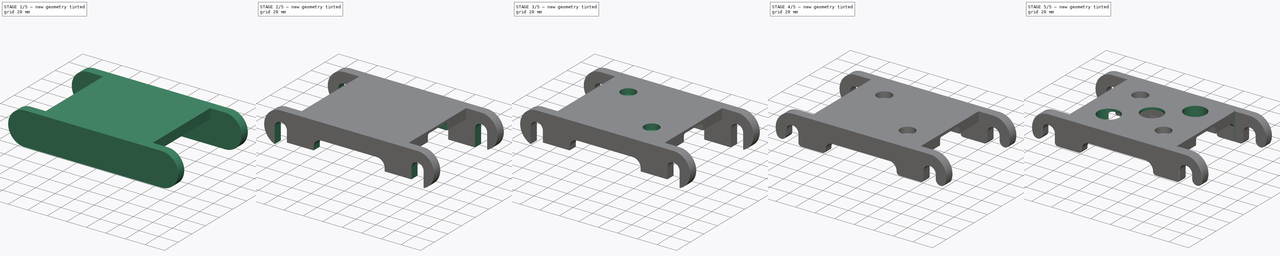
[diagram: build sequence overview — one tinted view per stage of 5, left to right]
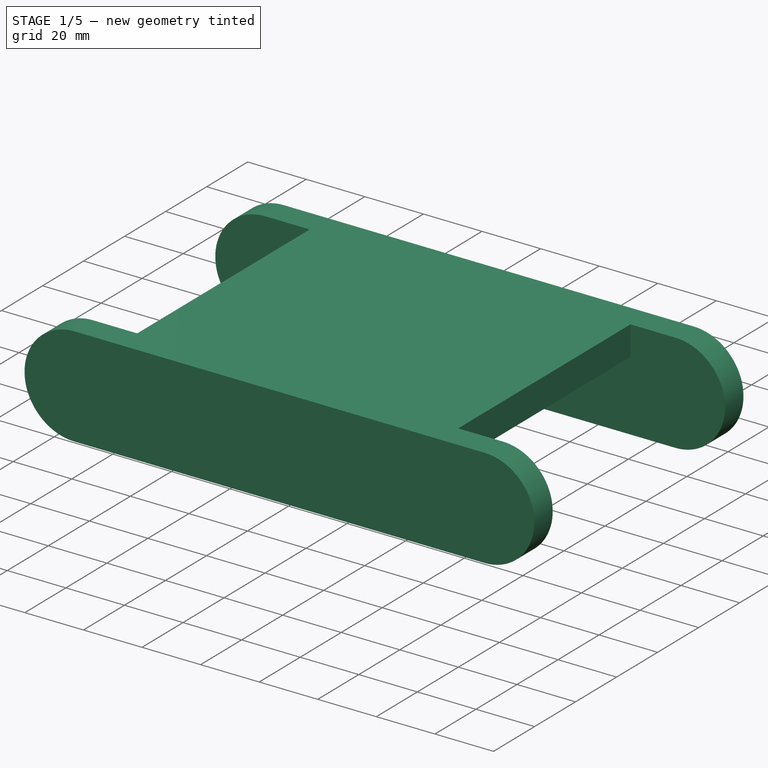
[diagram: stage 1 of 5 — iso view after this stage's code; geometry added in this stage tinted green]
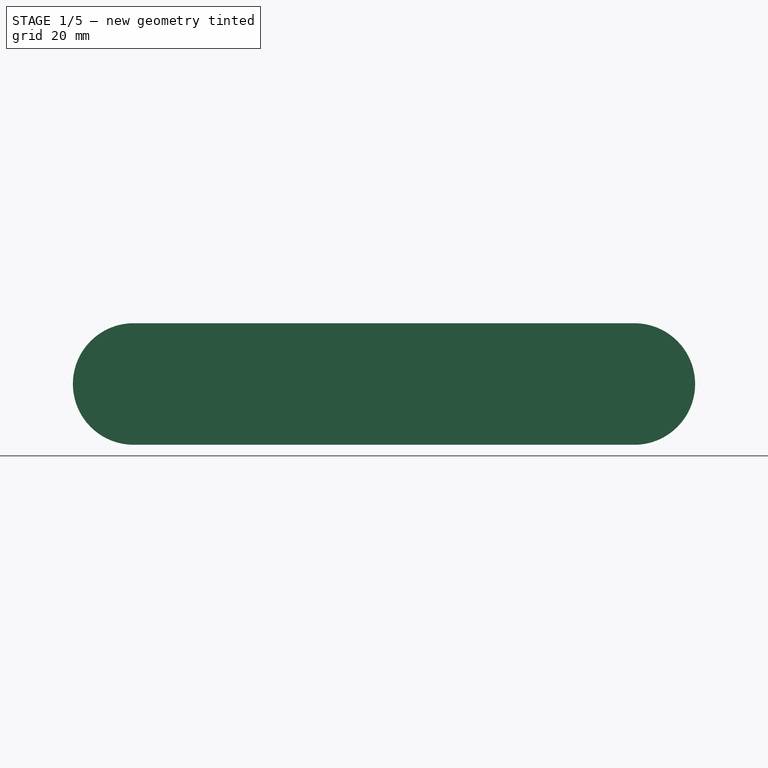
[diagram: stage 1 of 5 — front view after this stage's code; geometry added in this stage tinted green]
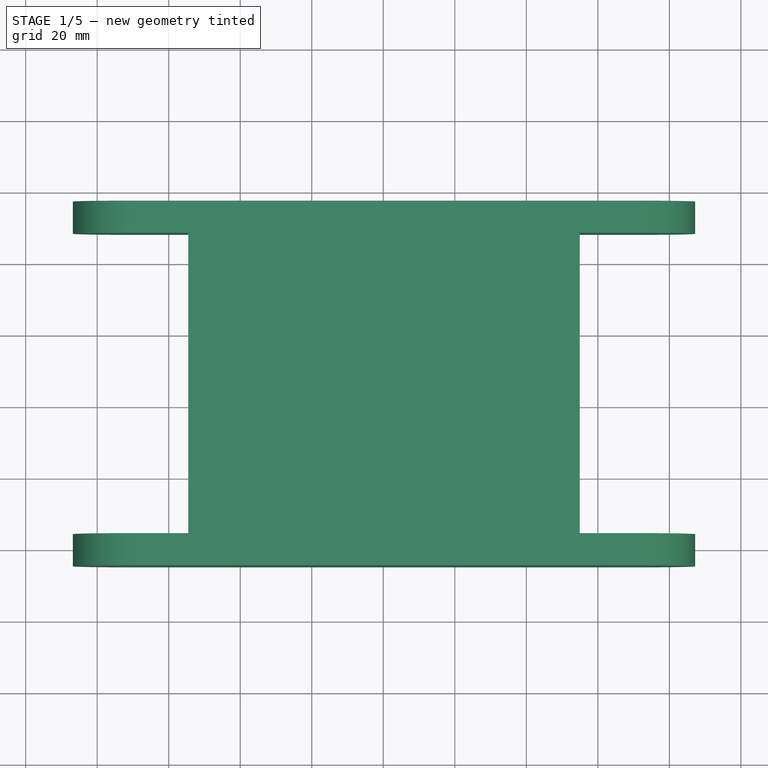
[diagram: stage 1 of 5 — top view after this stage's code; geometry added in this stage tinted green]
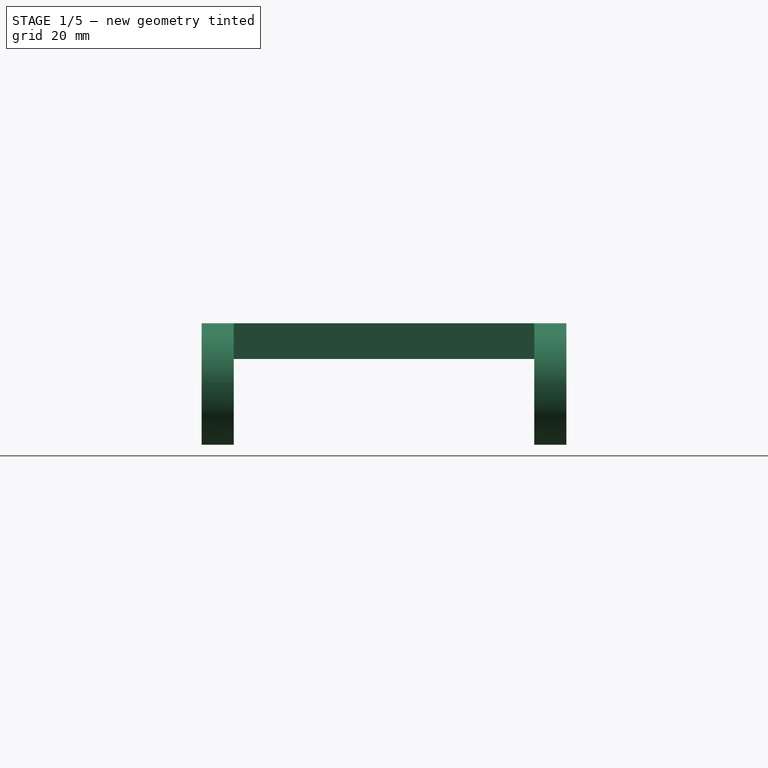
[diagram: stage 1 of 5 — right view after this stage's code; geometry added in this stage tinted green]
FCSTD DOCUMENT  (FreeCAD 0.20R29177 (Git))
Label: AT_007a_beltcenter
License: All rights reserved
LicenseURL: http://en.wikipedia.org/wiki/All_rights_reserved
objects: Sketcher::SketchObject×8, PartDesign::Pocket×5, PartDesign::Pad×4, PartDesign::Fillet×3, PartDesign::SubShapeBinder×1, PartDesign::Plane×1, PartDesign::Mirrored×1, PartDesign::Hole×1, PartDesign::Chamfer×1, PartDesign::Body×1
note: 40 computed .brp shape members not serialized (recipe doc carries the construction recipe); baked Part::Feature solids carry a one-line shape summary decoded from their .brp

FEATURE [PartDesign::SubShapeBinder] Binder
  BindCopyOnChange = 0
  BindMode = 2
  ClaimChildren = false
  Context = -> Body [Binder.]
  Fuse = false
  MakeFace = true
  OffsetFill = false
  OffsetIntersection = false
  OffsetJoinType = 0
  OffsetOpenResult = false
  PartialLoad = false
  Relative = true
  _Version = 2
FEATURE [Sketcher::SketchObject] Sketch
  ExternalGeometry = -> [Binder]
  FullyConstrained = true
  MapMode = 5
  Placement = pos=(-8.276e-13,9.51e-14,286.375) rot=(0,0,1;0rad)
  Support = -> [Binder]
  sketch-geometry (4):
    g0: LineSegment StartX=45.45 StartY=297.271 StartZ=0 EndX=154.95 EndY=297.271 EndZ=0
    g1: LineSegment StartX=154.95 StartY=297.271 StartZ=0 EndX=154.95 EndY=195.271 EndZ=0
    g2: LineSegment StartX=154.95 StartY=195.271 StartZ=0 EndX=45.45 EndY=195.271 EndZ=0
    g3: LineSegment StartX=45.45 StartY=195.271 StartZ=0 EndX=45.45 EndY=297.271 EndZ=0
  constraints (12):
    c: Coincident(g0,g1)
    c: Coincident(g1,g2)
    c: Coincident(g2,g3)
    c: Coincident(g3,g0)
    c: Horizontal(g0)
    c: Horizontal(g2)
    c: Vertical(g1)
    c: Vertical(g3)
    c: Vertical(g2,g-6)
    c: Vertical(g3,g-5)
    c: DistanceY(g-3,g0) = 3
    c: DistanceY(g1,g-4) = 3
FEATURE [PartDesign::Pad] Pad
  Direction = (-2.9e-15,3e-16,1)
  Length = 10
  Length2 = 10
  Profile = -> Sketch
  ReferenceAxis = -> Sketch [N_Axis]
  Reversed = true
  Type = 0
FEATURE [Sketcher::SketchObject] Sketch001
  ExternalGeometry = -> [Binder,Pad]
  FullyConstrained = true
  MapMode = 5
  Placement = pos=(-3.8097e-12,204.271,4.45e-14) rot=(1,0,0;1.5708rad)
  Support = -> [Binder]
  sketch-geometry (4):
    g0: ArcOfCircle CenterX=30.2 CenterY=269.375 CenterZ=0 NormalX=0 NormalY=0 NormalZ=1 AngleXU=0 Radius=17 StartAngle=1.5708 EndAngle=4.71239
    g1: ArcOfCircle CenterX=170.2 CenterY=269.375 CenterZ=0 NormalX=0 NormalY=0 NormalZ=1 AngleXU=0 Radius=17 StartAngle=4.71239 EndAngle=7.85398
    g2: LineSegment StartX=30.2 StartY=252.375 StartZ=0 EndX=170.2 EndY=252.375 EndZ=0
    g3: LineSegment StartX=170.2 StartY=286.375 StartZ=0 EndX=30.2 EndY=286.375 EndZ=0
  constraints (8):
    c: Tangent(g0,g2) = -1.5708
    c: Tangent(g2,g1) = -1.5708
    c: Tangent(g1,g3) = -1.5708
    c: Tangent(g3,g0) = -1.5708
    c: Equal(g0,g1)
    c: Coincident(g0,g-6)
    c: Coincident(g1,g-4)
    c: Horizontal(g1,g-7)
FEATURE [PartDesign::Pad] Pad001
  BaseFeature = -> Pad
  Direction = (1.87e-14,-1,-2e-16)
  Length = 9
  Length2 = 10
  Profile = -> Sketch001
  ReferenceAxis = -> Sketch001 [N_Axis]
  Type = 0
FEATURE [PartDesign::Plane] DatumPlane
  AttachmentOffset = pos=(0,0,0) rot=(1,0,0;1.5708rad)
  Length = 263.485
  MapMode = 45
  Placement = pos=(100.2,246.271,281.375) rot=(1,0,0;1.5708rad)
  ResizeMode = 0
  Support = -> [Pad001]
  Width = 362.772
FEATURE [PartDesign::Mirrored] Mirrored
  BaseFeature = -> Pad001
  MirrorPlane = -> DatumPlane
  Originals = -> [Pad001]
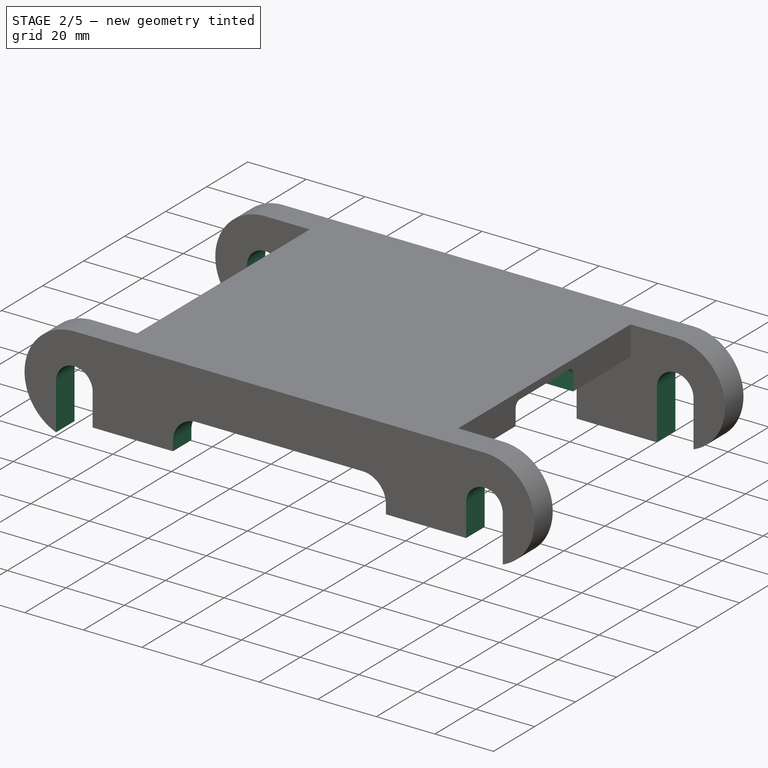
[diagram: stage 2 of 5 — iso view after this stage's code; geometry added in this stage tinted green]
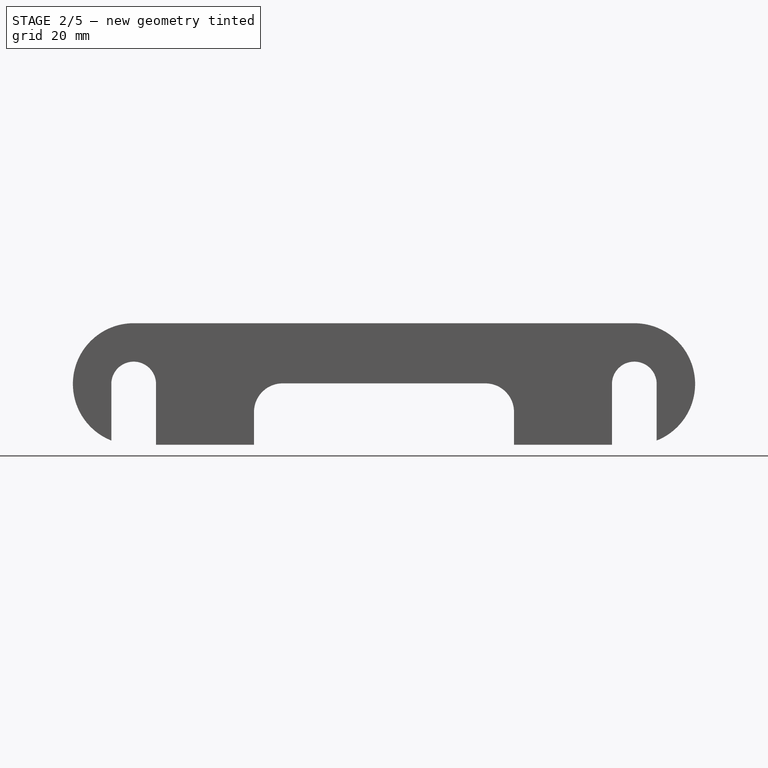
[diagram: stage 2 of 5 — front view after this stage's code; geometry added in this stage tinted green]
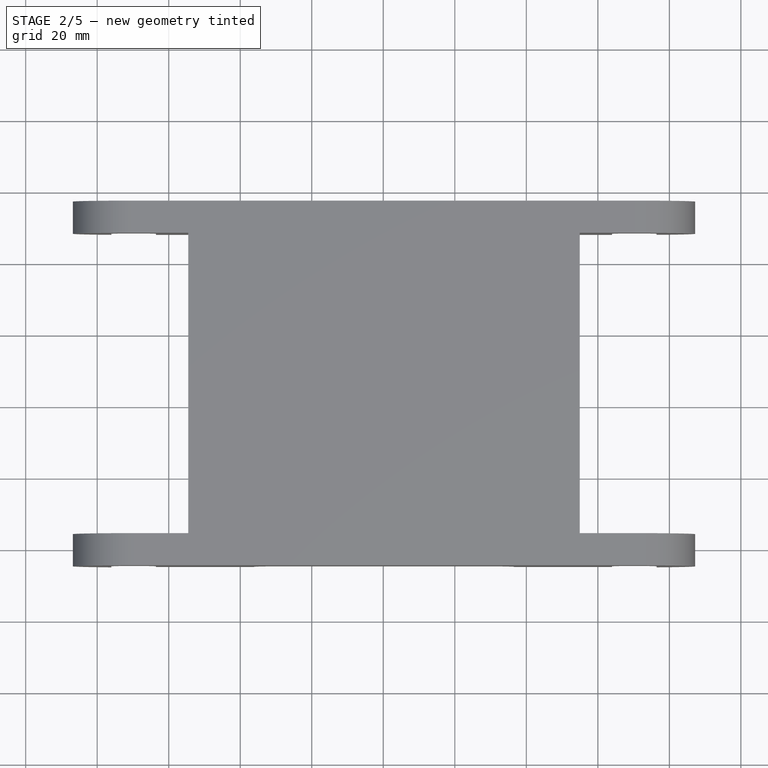
[diagram: stage 2 of 5 — top view after this stage's code; geometry added in this stage tinted green]
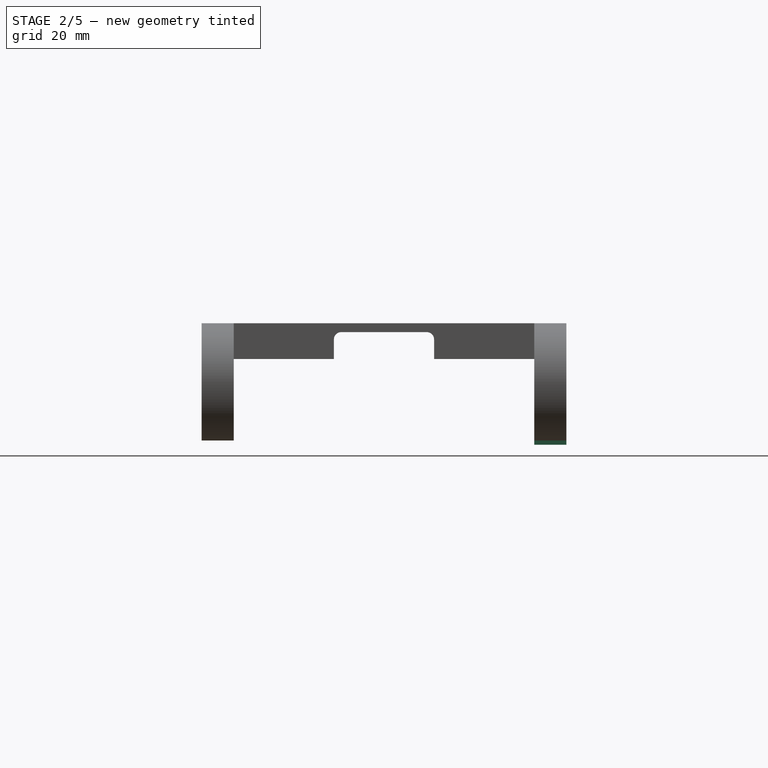
[diagram: stage 2 of 5 — right view after this stage's code; geometry added in this stage tinted green]
FEATURE [Sketcher::SketchObject] Sketch002
  ExternalGeometry = -> [Mirrored,Binder]
  FullyConstrained = false
  MapMode = 5
  Placement = pos=(-3.6293e-12,195.271,7.74e-14) rot=(1,0,0;1.5708rad)
  Support = -> [Mirrored]
  sketch-geometry (19):
    g0: LineSegment StartX=100.2 StartY=298.804 StartZ=0 EndX=100.2 EndY=223.761 EndZ=0
    g1: ArcOfCircle CenterX=71.8429 CenterY=261.547 CenterZ=0 NormalX=0 NormalY=0 NormalZ=1 AngleXU=0 Radius=8 StartAngle=1.5708 EndAngle=3.14159
    g2: LineSegment StartX=71.8429 StartY=269.547 StartZ=0 EndX=128.557 EndY=269.547 EndZ=0
    g3: ArcOfCircle CenterX=128.557 CenterY=261.547 CenterZ=0 NormalX=0 NormalY=0 NormalZ=1 AngleXU=0 Radius=8 StartAngle=3.1e-15 EndAngle=1.5708
    g4: LineSegment StartX=136.557 StartY=261.547 StartZ=0 EndX=136.557 EndY=244.273 EndZ=0
    g5: ArcOfCircle CenterX=128.557 CenterY=244.273 CenterZ=0 NormalX=0 NormalY=0 NormalZ=1 AngleXU=0 Radius=8 StartAngle=4.71239 EndAngle=6.28319
    g6: LineSegment StartX=128.557 StartY=236.273 StartZ=0 EndX=71.8429 EndY=236.273 EndZ=0
    g7: ArcOfCircle CenterX=71.8429 CenterY=244.273 CenterZ=0 NormalX=0 NormalY=0 NormalZ=1 AngleXU=0 Radius=8 StartAngle=3.14159 EndAngle=4.71239
    g8: LineSegment StartX=63.8429 StartY=244.273 StartZ=0 EndX=63.8429 EndY=261.547 EndZ=0
    g9: GeomPoint X=63.8429 Y=269.547 Z=0
    g10: GeomPoint X=136.557 Y=236.273 Z=0
    g11: ArcOfCircle CenterX=30.2 CenterY=269.375 CenterZ=0 NormalX=0 NormalY=0 NormalZ=1 AngleXU=0 Radius=6.25 StartAngle=-9e-16 EndAngle=3.14159
    g12: ArcOfCircle CenterX=30.2 CenterY=234.615 CenterZ=0 NormalX=0 NormalY=0 NormalZ=1 AngleXU=0 Radius=6.25 StartAngle=3.14159 EndAngle=6.28319
    g13: LineSegment StartX=23.95 StartY=269.375 StartZ=0 EndX=23.95 EndY=234.615 EndZ=0
    g14: LineSegment StartX=36.45 StartY=234.615 StartZ=0 EndX=36.45 EndY=269.375 EndZ=0
    g15: ArcOfCircle CenterX=170.2 CenterY=269.375 CenterZ=0 NormalX=0 NormalY=0 NormalZ=1 AngleXU=0 Radius=6.25 StartAngle=7e-16 EndAngle=3.14159
    g16: ArcOfCircle CenterX=170.2 CenterY=236.099 CenterZ=0 NormalX=0 NormalY=0 NormalZ=1 AngleXU=0 Radius=6.25 StartAngle=3.14159 EndAngle=6.28319
    g17: LineSegment StartX=163.95 StartY=269.375 StartZ=0 EndX=163.95 EndY=236.099 EndZ=0
    g18: LineSegment StartX=176.45 StartY=236.099 StartZ=0 EndX=176.45 EndY=269.375 EndZ=0
  constraints (37):
    c: Symmetric(g-3,g-4,g0)
    c: Tangent(g1,g2) = 1.5708
    c: Tangent(g2,g3) = 1.5708
    c: Tangent(g3,g4) = 1.5708
    c: Tangent(g4,g5) = 1.5708
    c: Tangent(g5,g6) = 1.5708
    c: Tangent(g6,g7) = 1.5708
    c: Tangent(g7,g8) = 1.5708
    c: Tangent(g8,g1) = 1.5708
    c: Horizontal(g2)
    c: Vertical(g4)
    c: Vertical(g8)
    c: Equal(g1,g3)
    c: Equal(g3,g5)
    c: Equal(g5,g7)
    c: PointOnObject(g9,g2)
    c: PointOnObject(g9,g8)
    c: PointOnObject(g10,g4)
    c: PointOnObject(g10,g6)
    c: Diameter(g3) = 16
    c: Symmetric(g6,g5,g0)
    c: Tangent(g11,g13) = -1.5708
    c: Tangent(g13,g12) = -1.5708
    c: Tangent(g12,g14) = -1.5708
    c: Tangent(g14,g11) = -1.5708
    c: Equal(g11,g12)
    c: Coincident(g11,g-6)
    c: Vertical(g13)
    c: Tangent(g15,g17) = -1.5708
    c: Tangent(g17,g16) = -1.5708
    c: Tangent(g16,g18) = -1.5708
    c: Tangent(g18,g15) = -1.5708
    c: Equal(g15,g16)
    c: Coincident(g15,g-4)
    c: Vertical(g17)
    c: Equal(g11,g15)
    c: Equal(g11,g-6)
FEATURE [PartDesign::Pocket] Pocket
  BaseFeature = -> Mirrored
  Direction = (-1.86e-14,1,4e-16)
  Length = 5
  Length2 = 5
  Profile = -> Sketch002
  ReferenceAxis = -> Sketch002 [N_Axis]
  Type = 1
FEATURE [PartDesign::Pocket] Pocket001
  BaseFeature = -> Pocket
  Direction = (-3.7e-15,-2e-16,1)
  Length = 6
  Length2 = 5
  Profile = -> Pocket [Face35,Face41]
  Type = 0
FEATURE [Sketcher::SketchObject] Sketch003
  ExternalGeometry = -> [Binder]
  FullyConstrained = false
  MapMode = 5
  Placement = pos=(154.95,0,4.478e-13) rot=(0.57735,0.57735,0.57735;2.0944rad)
  Support = -> [Pocket001]
  sketch-geometry (10):
    g0: ArcOfCircle CenterX=234.271 CenterY=281.875 CenterZ=0 NormalX=0 NormalY=0 NormalZ=1 AngleXU=0 Radius=2 StartAngle=1.5708 EndAngle=3.14159
    g1: LineSegment StartX=234.271 StartY=283.875 StartZ=0 EndX=258.271 EndY=283.875 EndZ=0
    g2: ArcOfCircle CenterX=258.271 CenterY=281.875 CenterZ=0 NormalX=0 NormalY=0 NormalZ=1 AngleXU=0 Radius=2 StartAngle=8e-16 EndAngle=1.5708
    g3: LineSegment StartX=260.271 StartY=281.875 StartZ=0 EndX=260.271 EndY=266.806 EndZ=0
    g4: ArcOfCircle CenterX=258.271 CenterY=266.806 CenterZ=0 NormalX=0 NormalY=0 NormalZ=1 AngleXU=0 Radius=2 StartAngle=4.71239 EndAngle=6.28319
    g5: LineSegment StartX=258.271 StartY=264.806 StartZ=0 EndX=234.271 EndY=264.806 EndZ=0
    g6: ArcOfCircle CenterX=234.271 CenterY=266.806 CenterZ=0 NormalX=0 NormalY=0 NormalZ=1 AngleXU=0 Radius=2 StartAngle=3.14159 EndAngle=4.71239
    g7: LineSegment StartX=232.271 StartY=266.806 StartZ=0 EndX=232.271 EndY=281.875 EndZ=0
    g8: GeomPoint X=232.271 Y=283.875 Z=0
    g9: GeomPoint X=260.271 Y=264.806 Z=0
  constraints (21):
    c: Tangent(g0,g1) = 1.5708
    c: Tangent(g1,g2) = 1.5708
    c: Tangent(g2,g3) = 1.5708
    c: Tangent(g3,g4) = 1.5708
    c: Tangent(g4,g5) = 1.5708
    c: Tangent(g5,g6) = 1.5708
    c: Tangent(g6,g7) = 1.5708
    c: Tangent(g7,g0) = 1.5708
    c: Horizontal(g1)
    c: Horizontal(g5)
    c: Vertical(g3)
    c: Vertical(g7)
    c: Equal(g2,g4)
    c: Equal(g4,g6)
    c: PointOnObject(g8,g1)
    c: PointOnObject(g8,g7)
    c: PointOnObject(g9,g3)
    c: PointOnObject(g9,g5)
    c: Coincident(g0,g-3)
    c: Coincident(g2,g-5)
    c: DistanceY(g-5,g1) = 1
FEATURE [PartDesign::Pocket] Pocket002
  BaseFeature = -> Pocket001
  Direction = (-1,-1e-16,-2.8e-15)
  Length = 5
  Length2 = 5
  Profile = -> Sketch003
  ReferenceAxis = -> Sketch003 [N_Axis]
  Type = 1
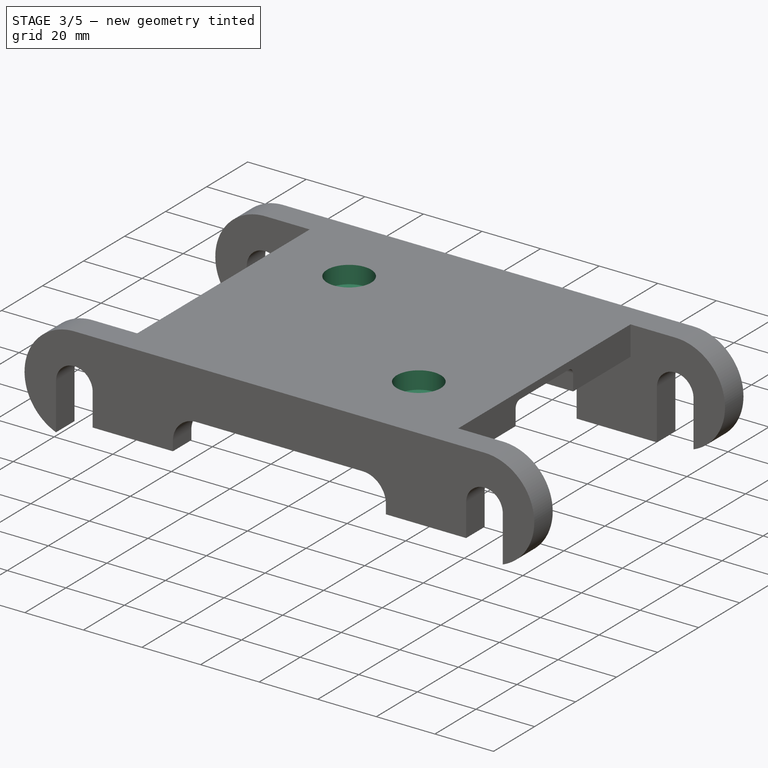
[diagram: stage 3 of 5 — iso view after this stage's code; geometry added in this stage tinted green]
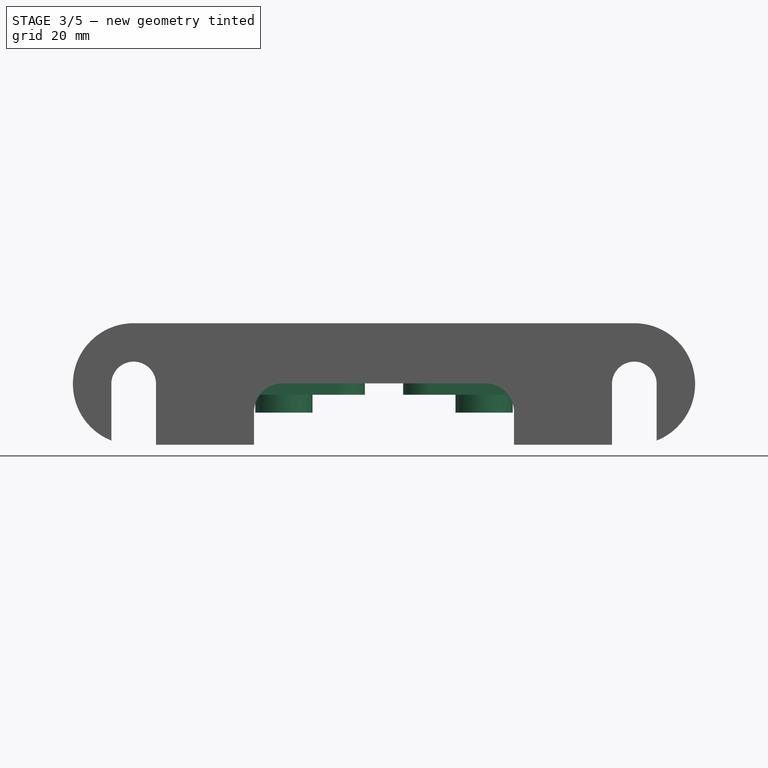
[diagram: stage 3 of 5 — front view after this stage's code; geometry added in this stage tinted green]
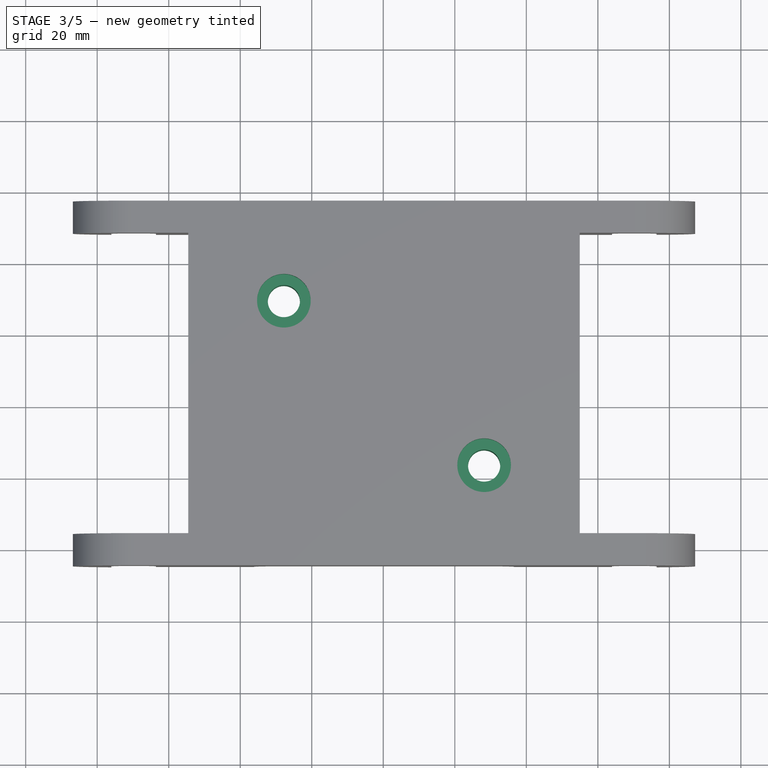
[diagram: stage 3 of 5 — top view after this stage's code; geometry added in this stage tinted green]
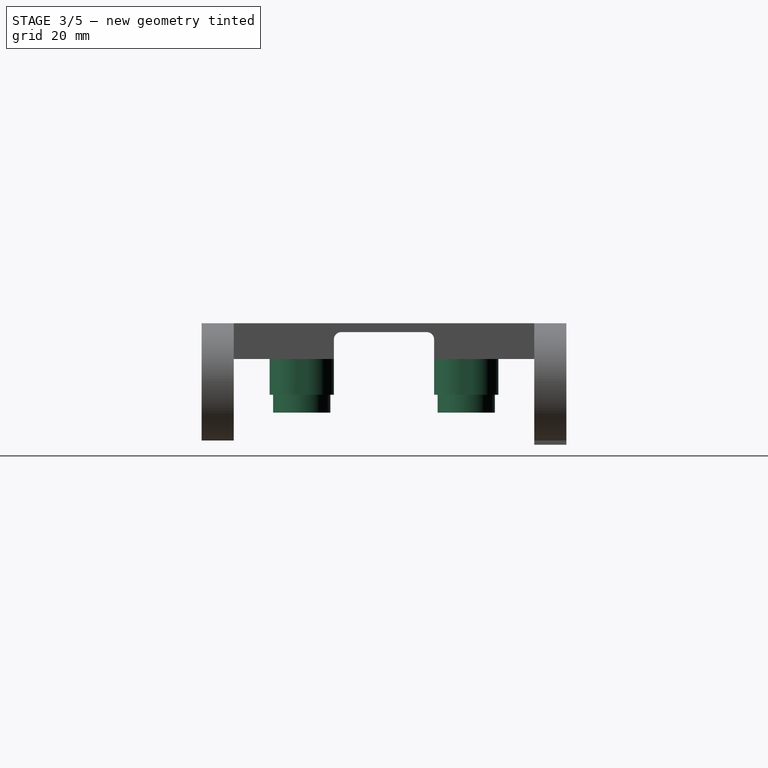
[diagram: stage 3 of 5 — right view after this stage's code; geometry added in this stage tinted green]
FEATURE [Sketcher::SketchObject] Sketch004
  ExternalGeometry = -> [Binder]
  FullyConstrained = true
  MapMode = 5
  Placement = pos=(-8.176e-13,7.98e-14,286.375) rot=(0,0,1;0rad)
  Support = -> [Pocket002]
  sketch-geometry (2):
    g0: Circle CenterX=72.2 CenterY=269.271 CenterZ=0 NormalX=0 NormalY=0 NormalZ=1 AngleXU=0 Radius=8
    g1: Circle CenterX=128.2 CenterY=223.271 CenterZ=0 NormalX=0 NormalY=0 NormalZ=1 AngleXU=0 Radius=8
  constraints (4):
    c: Coincident(g0,g-4)
    c: Coincident(g1,g-3)
    c: Equal(g0,g1)
    c: Diameter(g0) = 16
FEATURE [PartDesign::Pad] Pad002
  BaseFeature = -> Pocket002
  Direction = (-2.9e-15,3e-16,1)
  Length = 25
  Length2 = 10
  Profile = -> Sketch004
  ReferenceAxis = -> Sketch004 [N_Axis]
  Reversed = true
  Type = 0
FEATURE [Sketcher::SketchObject] Sketch005
  ExternalGeometry = -> [Pad002]
  FullyConstrained = false
  MapMode = 5
  Placement = pos=(-1.0741e-12,-2.32e-13,286.375) rot=(0,0,1;0rad)
  Support = -> [Pad002]
  sketch-geometry (2):
    g0: Circle CenterX=72.2 CenterY=269.271 CenterZ=0 NormalX=0 NormalY=0 NormalZ=1 AngleXU=0 Radius=4.05186
    g1: Circle CenterX=128.2 CenterY=223.271 CenterZ=0 NormalX=0 NormalY=0 NormalZ=1 AngleXU=0 Radius=4.29389
  constraints (2):
    c: Coincident(g0,g-3)
    c: Coincident(g1,g-4)
FEATURE [PartDesign::Hole] Hole
  BaseFeature = -> Pad002
  CustomThreadClearance = 0
  Depth = 25
  DepthType = 0
  Diameter = 9
  DrillForDepth = false
  DrillPoint = 1
  DrillPointAngle = 118
  HoleCutCountersinkAngle = 90
  HoleCutCustomValues = false
  HoleCutDepth = 6
  HoleCutDiameter = 15
  HoleCutType = 6
  ModelThread = false
  Profile = -> Sketch005
  Tapered = false
  TaperedAngle = 90
  ThreadClass = 0
  ThreadDepth = 25
  ThreadDepthType = 0
  ThreadDirection = 0
  ThreadFit = 0
  ThreadSize = 16
  ThreadType = 1
  Threaded = false
  UseCustomThreadClearance = false
FEATURE [Sketcher::SketchObject] Sketch006
  ExternalGeometry = -> [Hole]
  FullyConstrained = false
  MapMode = 5
  Placement = pos=(-7.891e-13,7.7e-14,276.375) rot=(1,0,0;3.14159rad)
  Support = -> [Hole]
  sketch-geometry (22):
    g0: ArcOfCircle CenterX=113.011 CenterY=-221.732 CenterZ=0 NormalX=0 NormalY=0 NormalZ=1 AngleXU=0 Radius=7.46051 StartAngle=1.5708 EndAngle=3.14159
    g1: LineSegment StartX=113.011 StartY=-214.271 StartZ=0 EndX=143.389 EndY=-214.271 EndZ=0
    g2: ArcOfCircle CenterX=143.389 CenterY=-221.732 CenterZ=0 NormalX=0 NormalY=0 NormalZ=1 AngleXU=0 Radius=7.46051 StartAngle=3e-16 EndAngle=1.5708
    g3: LineSegment StartX=150.849 StartY=-221.732 StartZ=0 EndX=150.849 EndY=-224.811 EndZ=0
    g4: ArcOfCircle CenterX=143.389 CenterY=-224.811 CenterZ=0 NormalX=0 NormalY=0 NormalZ=1 AngleXU=0 Radius=7.46051 StartAngle=4.71239 EndAngle=6.28319
    g5: LineSegment StartX=143.389 StartY=-232.271 StartZ=0 EndX=113.011 EndY=-232.271 EndZ=0
    g6: ArcOfCircle CenterX=113.011 CenterY=-224.811 CenterZ=0 NormalX=0 NormalY=0 NormalZ=1 AngleXU=0 Radius=7.46051 StartAngle=3.14159 EndAngle=4.71239
    g7: LineSegment StartX=105.551 StartY=-224.811 StartZ=0 EndX=105.551 EndY=-221.732 EndZ=0
    g8: GeomPoint X=105.551 Y=-214.271 Z=0
    g9: GeomPoint X=150.849 Y=-232.271 Z=0
    g10: Circle CenterX=128.2 CenterY=-223.271 CenterZ=0 NormalX=0 NormalY=0 NormalZ=1 AngleXU=0 Radius=5.39363
    g11: ArcOfCircle CenterX=57.0111 CenterY=-267.732 CenterZ=0 NormalX=0 NormalY=0 NormalZ=1 AngleXU=0 Radius=7.46051 StartAngle=1.5708 EndAngle=3.14159
    g12: LineSegment StartX=57.0111 StartY=-260.271 StartZ=0 EndX=87.3889 EndY=-260.271 EndZ=0
    g13: ArcOfCircle CenterX=87.3889 CenterY=-267.732 CenterZ=0 NormalX=0 NormalY=0 NormalZ=1 AngleXU=0 Radius=7.46051 StartAngle=-2.7e-15 EndAngle=1.5708
    g14: LineSegment StartX=94.8494 StartY=-267.732 StartZ=0 EndX=94.8494 EndY=-270.811 EndZ=0
    g15: ArcOfCircle CenterX=87.3889 CenterY=-270.811 CenterZ=0 NormalX=0 NormalY=0 NormalZ=1 AngleXU=0 Radius=7.46051 StartAngle=4.71239 EndAngle=6.28319
    g16: LineSegment StartX=87.3889 StartY=-278.271 StartZ=0 EndX=57.0111 EndY=-278.271 EndZ=0
    g17: ArcOfCircle CenterX=57.0111 CenterY=-270.811 CenterZ=0 NormalX=0 NormalY=0 NormalZ=1 AngleXU=0 Radius=7.46051 StartAngle=3.14159 EndAngle=4.71239
    g18: LineSegment StartX=49.5506 StartY=-270.811 StartZ=0 EndX=49.5506 EndY=-267.732 EndZ=0
    g19: GeomPoint X=49.5506 Y=-260.271 Z=0
    g20: GeomPoint X=94.8494 Y=-278.271 Z=0
    g21: Circle CenterX=72.2 CenterY=-269.271 CenterZ=0 NormalX=0 NormalY=0 NormalZ=1 AngleXU=0 Radius=6.81911
  constraints (46):
    c: Tangent(g0,g1) = 1.5708
    c: Tangent(g1,g2) = 1.5708
    c: Tangent(g2,g3) = 1.5708
    c: Tangent(g3,g4) = 1.5708
    c: Tangent(g4,g5) = 1.5708
    c: Tangent(g5,g6) = 1.5708
    c: Tangent(g6,g7) = 1.5708
    c: Tangent(g7,g0) = 1.5708
    c: Horizontal(g1)
    c: Horizontal(g5)
    c: Vertical(g3)
    c: Vertical(g7)
    c: Equal(g0,g2)
    c: Equal(g2,g4)
    c: Equal(g4,g6)
    c: PointOnObject(g8,g1)
    c: PointOnObject(g8,g7)
    c: PointOnObject(g9,g3)
    c: PointOnObject(g9,g5)
    c: Symmetric(g0,g4,g-6)
    c: PointOnObject(g4,g-7)
    c: Coincident(g10,g-6)
    c: Tangent(g11,g12) = 1.5708
    c: Tangent(g12,g13) = 1.5708
    c: Tangent(g13,g14) = 1.5708
    c: Tangent(g14,g15) = 1.5708
    c: Tangent(g15,g16) = 1.5708
    c: Tangent(g16,g17) = 1.5708
    c: Tangent(g17,g18) = 1.5708
    c: Tangent(g18,g11) = 1.5708
    c: Horizontal(g12)
    c: Horizontal(g16)
    c: Vertical(g14)
    c: Vertical(g18)
    c: Equal(g11,g13)
    c: Equal(g13,g15)
    c: Equal(g15,g17)
    c: PointOnObject(g19,g12)
    c: PointOnObject(g19,g18)
    c: PointOnObject(g20,g14)
    c: PointOnObject(g20,g16)
    c: Symmetric(g11,g15,g-5)
    c: Equal(g12,g1)
    c: Equal(g14,g3)
    c: PointOnObject(g12,g-8)
    c: Coincident(g21,g-5)
FEATURE [PartDesign::Pad] Pad003
  BaseFeature = -> Hole
  Direction = (2.9e-15,-3e-16,-1)
  Length = 10
  Length2 = 10
  Profile = -> Sketch006
  ReferenceAxis = -> Sketch006 [N_Axis]
  Type = 0
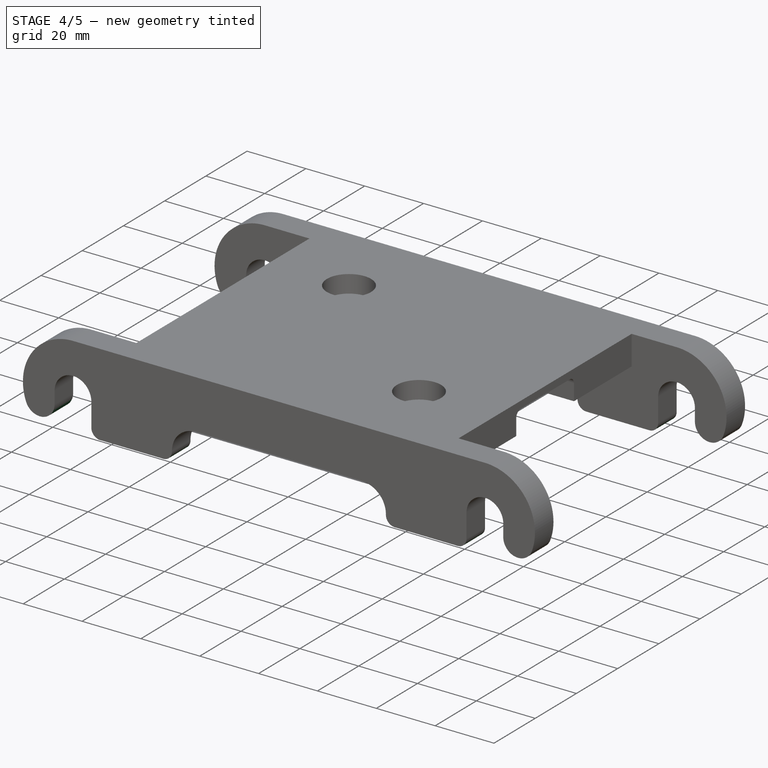
[diagram: stage 4 of 5 — iso view after this stage's code; geometry added in this stage tinted green]
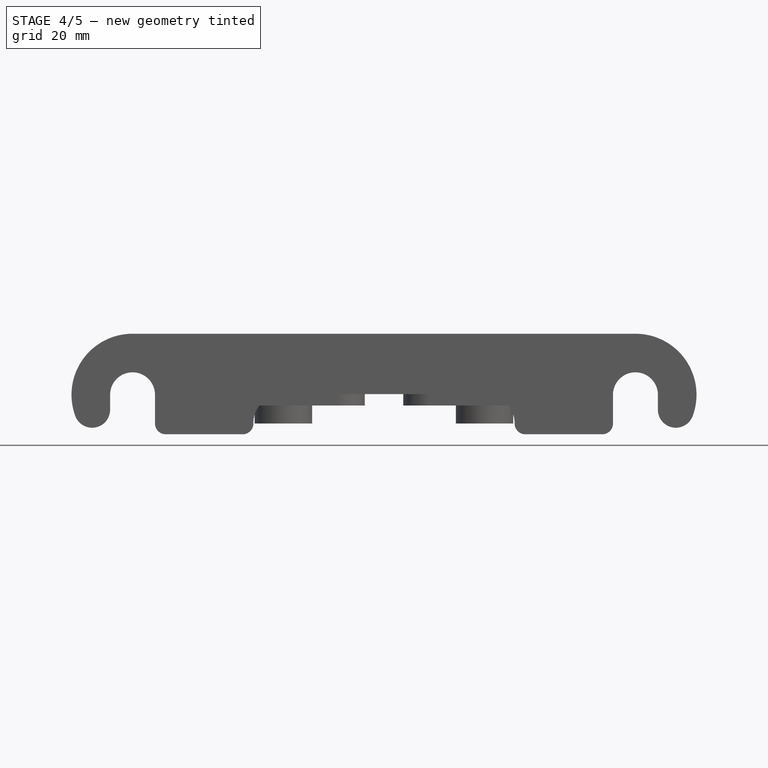
[diagram: stage 4 of 5 — front view after this stage's code; geometry added in this stage tinted green]
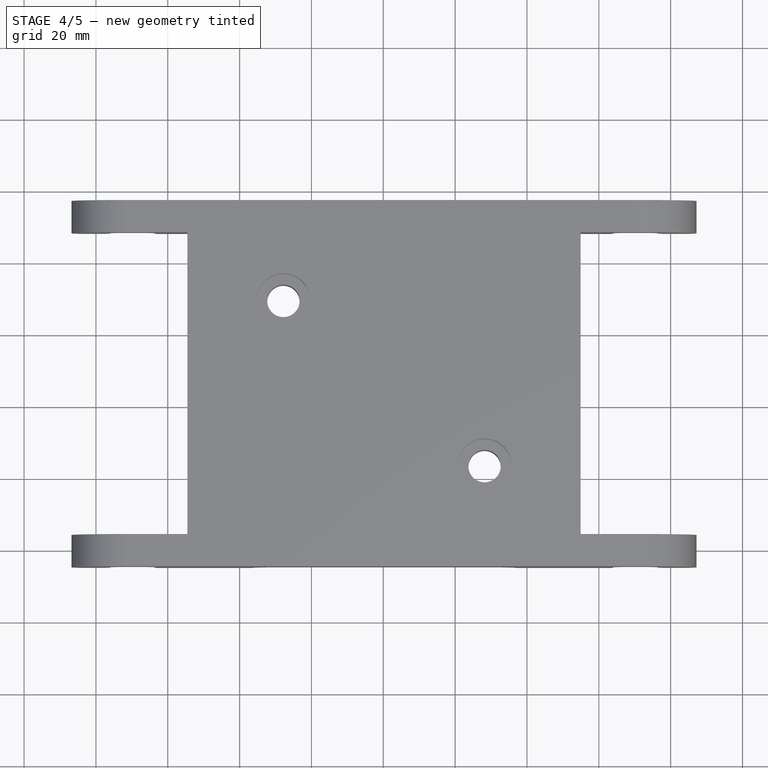
[diagram: stage 4 of 5 — top view after this stage's code; geometry added in this stage tinted green]
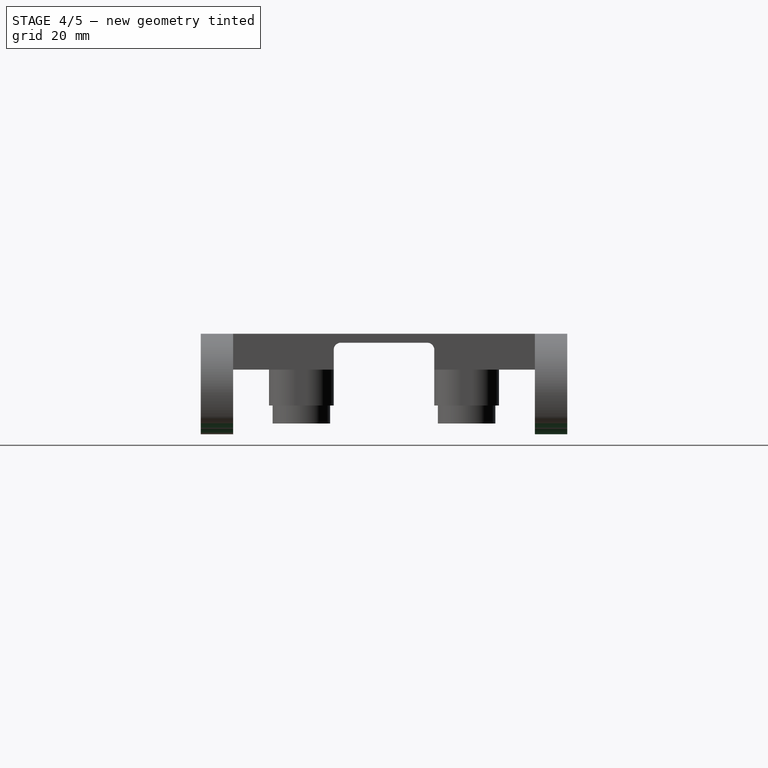
[diagram: stage 4 of 5 — right view after this stage's code; geometry added in this stage tinted green]
FEATURE [PartDesign::Pocket] Pocket003
  BaseFeature = -> Pad003
  Direction = (-3.7e-15,7e-16,1)
  Length = 6
  Length2 = 5
  Profile = -> Pad003 [Face8,Face14]
  Type = 0
FEATURE [PartDesign::Fillet] Fillet
  Base = -> Pocket003 [Edge52,Edge182,Edge155,Edge26]
  BaseFeature = -> Pocket003
  Radius = 5
  SupportTransform = false
  UseAllEdges = false
FEATURE [PartDesign::Fillet] Fillet001
  Base = -> Fillet [Edge60,Edge204,Edge58,Edge38,Edge35,Edge180,Edge181,Edge202]
  BaseFeature = -> Fillet
  Radius = 3
  SupportTransform = false
  UseAllEdges = false
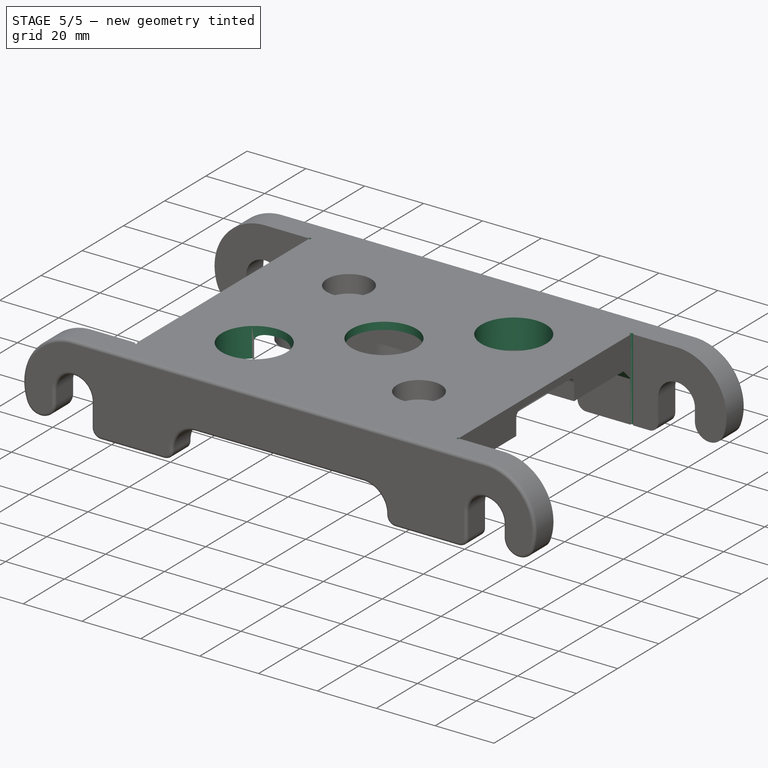
[diagram: stage 5 of 5 — iso view after this stage's code; geometry added in this stage tinted green]
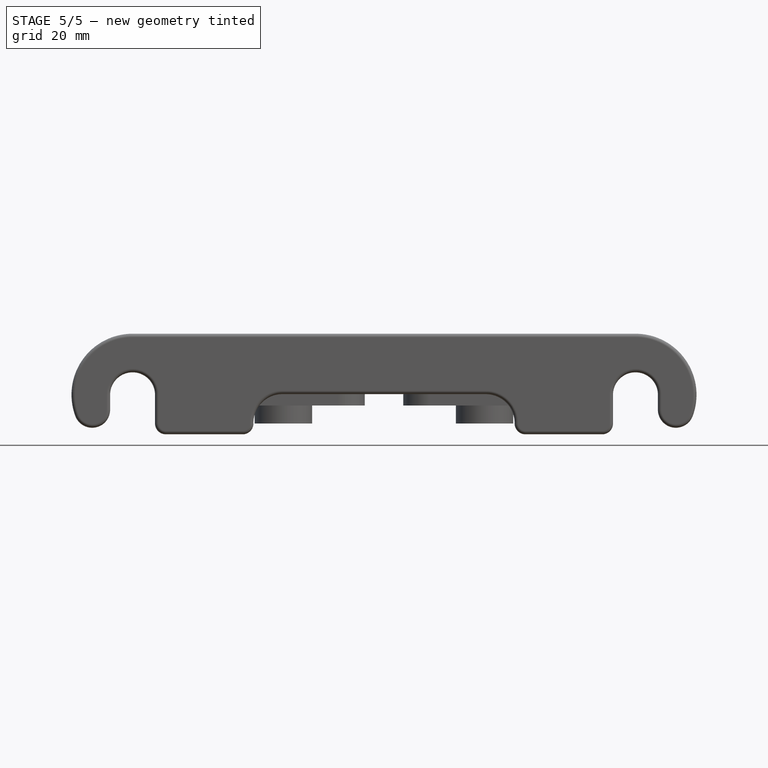
[diagram: stage 5 of 5 — front view after this stage's code; geometry added in this stage tinted green]
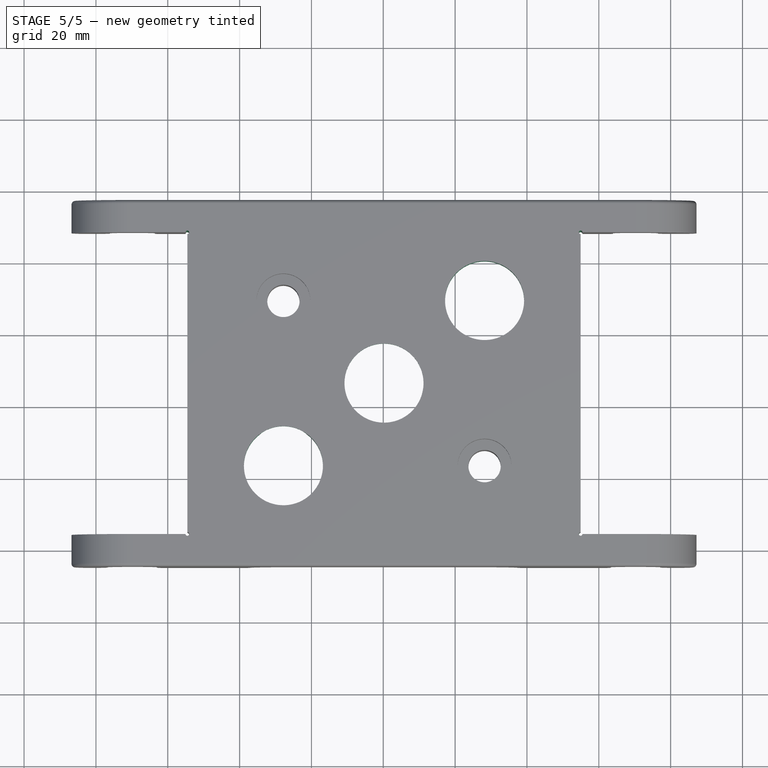
[diagram: stage 5 of 5 — top view after this stage's code; geometry added in this stage tinted green]
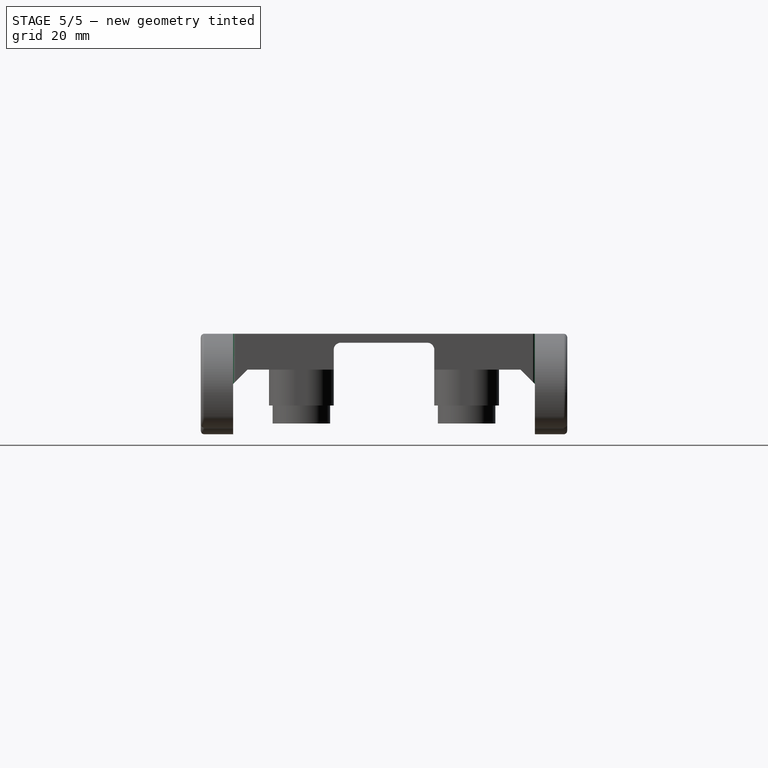
[diagram: stage 5 of 5 — right view after this stage's code; geometry added in this stage tinted green]
FEATURE [PartDesign::Chamfer] Chamfer
  Angle = 45
  Base = -> Fillet001 [Edge76,Edge117]
  BaseFeature = -> Fillet001
  ChamferType = 0
  FlipDirection = false
  Size = 4
  Size2 = 1
  SupportTransform = false
  UseAllEdges = false
FEATURE [Sketcher::SketchObject] Sketch007
  ExternalGeometry = -> [Chamfer]
  FullyConstrained = true
  MapMode = 5
  Placement = pos=(-8.176e-13,7.98e-14,286.375) rot=(0,0,1;0rad)
  Support = -> [Chamfer]
  sketch-geometry (11):
    g0: Circle CenterX=45.45 CenterY=288.271 CenterZ=0 NormalX=0 NormalY=0 NormalZ=1 AngleXU=0 Radius=0.5
    g1: Circle CenterX=45.45 CenterY=204.271 CenterZ=0 NormalX=0 NormalY=0 NormalZ=1 AngleXU=0 Radius=0.5
    g2: Circle CenterX=154.95 CenterY=204.271 CenterZ=0 NormalX=0 NormalY=0 NormalZ=1 AngleXU=0 Radius=0.5
    g3: Circle CenterX=154.95 CenterY=288.271 CenterZ=0 NormalX=0 NormalY=0 NormalZ=1 AngleXU=0 Radius=0.5
    g4: LineSegment StartX=72.2 StartY=269.271 StartZ=0 EndX=128.2 EndY=269.271 EndZ=0
    g5: LineSegment StartX=128.2 StartY=269.271 StartZ=0 EndX=128.2 EndY=223.271 EndZ=0
    g6: LineSegment StartX=128.2 StartY=223.271 StartZ=0 EndX=72.2 EndY=223.271 EndZ=0
    g7: LineSegment StartX=72.2 StartY=223.271 StartZ=0 EndX=72.2 EndY=269.271 EndZ=0
    g8: Circle CenterX=72.2 CenterY=223.271 CenterZ=0 NormalX=0 NormalY=0 NormalZ=1 AngleXU=0 Radius=11
    g9: Circle CenterX=128.2 CenterY=269.271 CenterZ=0 NormalX=0 NormalY=0 NormalZ=1 AngleXU=0 Radius=11
    g10: Circle CenterX=100.2 CenterY=246.271 CenterZ=0 NormalX=0 NormalY=0 NormalZ=1 AngleXU=0 Radius=11
  constraints (24):
    c: Coincident(g0,g-3)
    c: Coincident(g1,g-3)
    c: Coincident(g2,g-4)
    c: Coincident(g3,g-4)
    c: Equal(g0,g1)
    c: Equal(g1,g2)
    c: Equal(g2,g3)
    c: Diameter(g1) = 1
    c: Coincident(g4,g5)
    c: Coincident(g5,g6)
    c: Coincident(g6,g7)
    c: Coincident(g7,g4)
    c: Horizontal(g4)
    c: Horizontal(g6)
    c: Vertical(g5)
    c: Vertical(g7)
    c: Coincident(g4,g-5)
    c: Coincident(g5,g-6)
    c: Coincident(g8,g6)
    c: Coincident(g9,g4)
    c: Symmetric(g8,g9,g10)
    c: Equal(g8,g10)
    c: Equal(g10,g9)
    c: Diameter(g8) = 22
FEATURE [PartDesign::Pocket] Pocket004
  BaseFeature = -> Chamfer
  Direction = (2.9e-15,-3e-16,-1)
  Length = 5
  Length2 = 5
  Profile = -> Sketch007
  ReferenceAxis = -> Sketch007 [N_Axis]
  Type = 1
FEATURE [PartDesign::Fillet] Fillet002
  Base = -> Pocket004 [Edge268,Edge102]
  BaseFeature = -> Pocket004
  Radius = 1
  SupportTransform = false
  UseAllEdges = false
FEATURE [PartDesign::Body] Body
  Group = -> [Binder,Sketch,Pad,Sketch001,Pad001,DatumPlane,Mirrored,Sketch002,Pocket,Pocket001,Sketch003,Pocket002,Sketch004,Pad002,Sketch005,Hole,Sketch006,Pad003,Pocket003,Fillet,Fillet001,Chamfer,Sketch007,Pocket004,Fillet002]
  Origin = -> Origin
  Tip = -> Fillet002
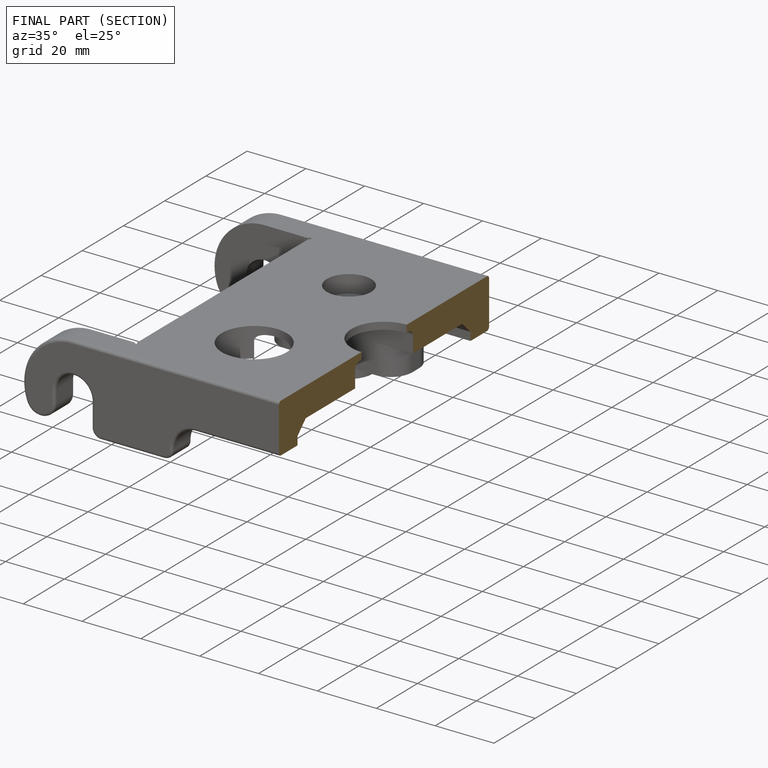
[diagram: finished part — half-section view (interior)]
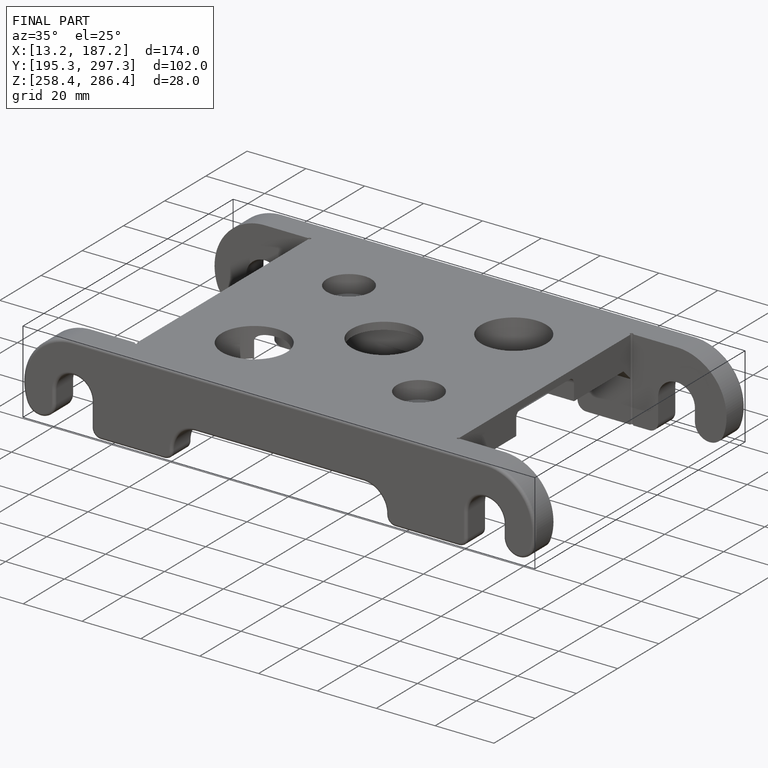
[diagram: finished part — iso view with bounding-box wireframe]
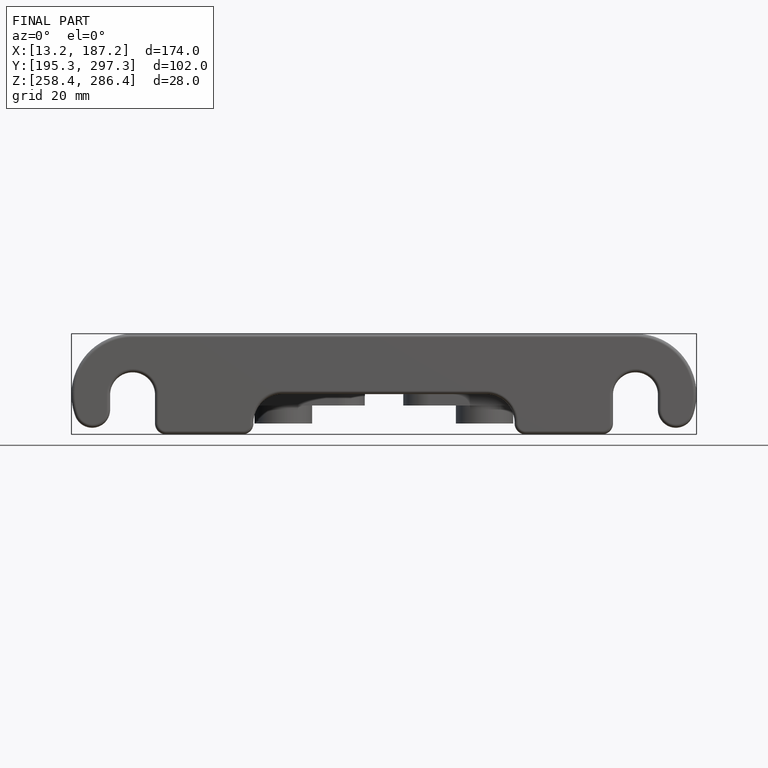
[diagram: finished part — front view with bounding-box wireframe]
